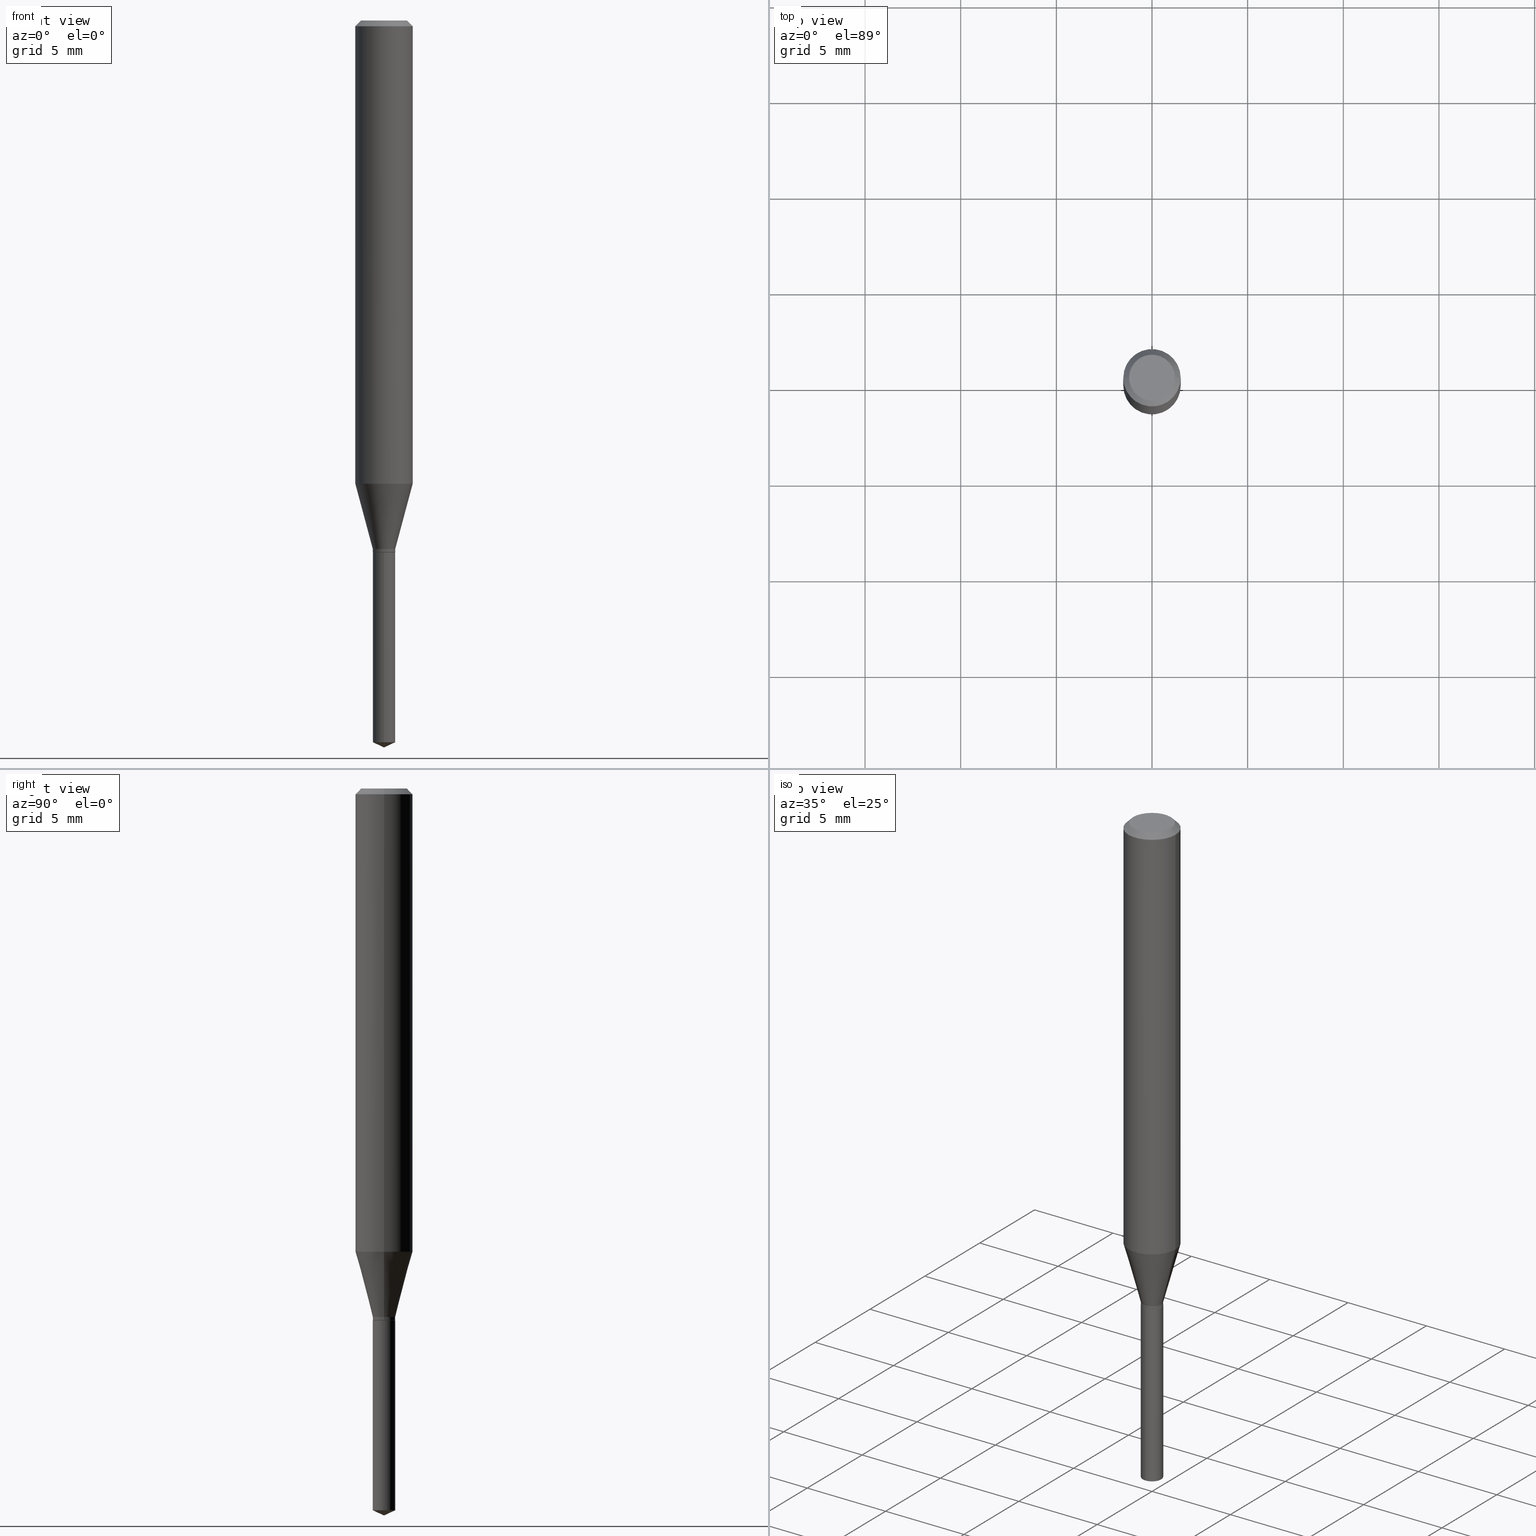
[diagram: canonical four-view strip — front | top / right | iso, engineering-drawing reading convention]
A machine part, canonical four-view strip (front | top / right | iso — engineering-drawing reading convention). The complete STEP part file that produces these views, byte-faithful:
ISO-10303-21;
HEADER;
FILE_DESCRIPTION (( 'STEP AP203' ),
    '1' );
FILE_NAME ('07845.STEP',
    '2024-04-24T04:21:15',
    ( '' ),
    ( '' ),
    'SwSTEP 2.0',
    'SolidWorks 2023',
    '' );
FILE_SCHEMA (( 'CONFIG_CONTROL_DESIGN' ));
ENDSEC;

DATA;
#1 = DIRECTION ( 'NONE',  ( -2.445470214571802116E-29, 3.491479321953280158E-15, 1.000000000000000000 ) ) ;
#2 = AXIS2_PLACEMENT_3D ( 'NONE', #76, #419, #384 ) ;
#3 = AXIS2_PLACEMENT_3D ( 'NONE', #281, #426, #246 ) ;
#4 = DIRECTION ( 'NONE',  ( 1.000000000000000000, -6.982962677686266711E-15, 0.000000000000000000 ) ) ;
#5 = CARTESIAN_POINT ( 'NONE',  ( 0.05905000000000006077, -4.123439461173744764E-16, 2.879382386107503023E-30 ) ) ;
#6 = EDGE_LOOP ( 'NONE', ( #293, #39 ) ) ;
#7 = VERTEX_POINT ( 'NONE', #413 ) ;
#8 = AXIS2_PLACEMENT_3D ( 'NONE', #186, #34, #78 ) ;
#9 = AXIS2_PLACEMENT_3D ( 'NONE', #316, #472, #238 ) ;
#10 = FACE_OUTER_BOUND ( 'NONE', #333, .T. ) ;
#11 = CARTESIAN_POINT ( 'NONE',  ( 3.632381575223795657E-29, -5.186076634322272110E-15, -1.485351608479527075 ) ) ;
#12 = VERTEX_POINT ( 'NONE', #174 ) ;
#13 = VECTOR ( 'NONE', #222, 39.37007874015748854 ) ;
#14 = VERTEX_POINT ( 'NONE', #221 ) ;
#15 = CONICAL_SURFACE ( 'NONE', #375, 0.02255000000000000060, 0.7853981633974098653 ) ;
#16 = EDGE_CURVE ( 'NONE', #449, #392, #72, .T. ) ;
#17 = COORDINATED_UNIVERSAL_TIME_OFFSET ( 5, 0, .BEHIND. ) ;
#18 = APPLICATION_CONTEXT ( 'configuration controlled 3d designs of mechanical parts and assemblies' ) ;
#19 = PERSON_AND_ORGANIZATION ( #175, #440 ) ;
#20 = VERTEX_POINT ( 'NONE', #340 ) ;
#21 = CIRCLE ( 'NONE', #141, 0.02305000000000000104 ) ;
#22 = CARTESIAN_POINT ( 'NONE',  ( -0.05904999999999999832, 3.711095515056362547E-16, -0.01181000000000007565 ) ) ;
#23 = PERSON_AND_ORGANIZATION_ROLE ( 'classification_officer' ) ;
#24 = DIRECTION ( 'NONE',  ( 0.000000000000000000, 0.000000000000000000, 1.000000000000000000 ) ) ;
#25 = DIRECTION ( 'NONE',  ( -2.445468806185136597E-29, 3.491481338843145583E-15, 1.000000000000000000 ) ) ;
#26 = CARTESIAN_POINT ( 'NONE',  ( -0.02305000000000000104, -3.633555003533102036E-15, -1.087599999999999900 ) ) ;
#27 = AXIS2_PLACEMENT_3D ( 'NONE', #187, #313, #181 ) ;
#28 = ORIENTED_EDGE ( 'NONE', *, *, #385, .F. ) ;
#29 = CYLINDRICAL_SURFACE ( 'NONE', #8, 0.02305000000000000104 ) ;
#30 = SECURITY_CLASSIFICATION ( '', '', #220 ) ;
#31 = ADVANCED_FACE ( 'NONE', ( #331 ), #257, .T. ) ;
#32 = DIRECTION ( 'NONE',  ( -2.445468806185136597E-29, 3.491481338843145583E-15, 1.000000000000000000 ) ) ;
#33 = CARTESIAN_POINT ( 'NONE',  ( 2.676565608369631794E-29, -3.821426325363822773E-15, -1.094499999999999806 ) ) ;
#34 = DIRECTION ( 'NONE',  ( -2.445468806185136597E-29, 3.491481338843145583E-15, 1.000000000000000000 ) ) ;
#35 = FACE_OUTER_BOUND ( 'NONE', #146, .T. ) ;
#36 = ADVANCED_FACE ( 'NONE', ( #365 ), #99, .T. ) ;
#37 = DIRECTION ( 'NONE',  ( -2.445468806185136877E-29, 3.491481338843145188E-15, 1.000000000000000000 ) ) ;
#38 = CARTESIAN_POINT ( 'NONE',  ( 2.676565608369631794E-29, -3.821426325363822773E-15, -1.094499999999999806 ) ) ;
#39 = ORIENTED_EDGE ( 'NONE', *, *, #16, .F. ) ;
#40 = CARTESIAN_POINT ( 'NONE',  ( 2.888098660104664642E-31, -4.123439461173780879E-17, -0.01181000000000007565 ) ) ;
#41 = ADVANCED_FACE ( 'NONE', ( #111 ), #467, .F. ) ;
#42 = EDGE_LOOP ( 'NONE', ( #377, #122, #451, #403 ) ) ;
#43 = VECTOR ( 'NONE', #203, 39.37007874015748143 ) ;
#44 =( GEOMETRIC_REPRESENTATION_CONTEXT ( 3 ) GLOBAL_UNCERTAINTY_ASSIGNED_CONTEXT ( ( #486 ) ) GLOBAL_UNIT_ASSIGNED_CONTEXT ( ( #393, #464, #89 ) ) REPRESENTATION_CONTEXT ( 'NONE', 'WORKASPACE' ) );
#45 = DIRECTION ( 'NONE',  ( -2.445468806185136877E-29, 3.491481338843145188E-15, 1.000000000000000000 ) ) ;
#46 = LENGTH_MEASURE_WITH_UNIT ( LENGTH_MEASURE( 0.02539999999999999897 ), #314 );
#47 = CARTESIAN_POINT ( 'NONE',  ( -0.02305000000000000104, -3.644727743817399659E-15, -1.087599999999999900 ) ) ;
#48 = CIRCLE ( 'NONE', #110, 0.05904999999999999832 ) ;
#49 = CARTESIAN_POINT ( 'NONE',  ( -9.261968845786000133E-28, 1.322362114038720264E-13, 37.87397874015748300 ) ) ;
#50 = DIRECTION ( 'NONE',  ( 0.2588190451025211836, 1.565188264969622559E-15, 0.9659258262890679791 ) ) ;
#51 = EDGE_CURVE ( 'NONE', #392, #411, #52, .T. ) ;
#52 = LINE ( 'NONE', #284, #321 ) ;
#53 = FACE_OUTER_BOUND ( 'NONE', #130, .T. ) ;
#54 = DIRECTION ( 'NONE',  ( 1.000000000000000000, -6.982962677686264344E-15, 0.000000000000000000 ) ) ;
#55 = ORIENTED_EDGE ( 'NONE', *, *, #162, .T. ) ;
#56 = MANIFOLD_SOLID_BREP ( 'Body-Move/Copy2[1]', #97 ) ;
#57 = EDGE_LOOP ( 'NONE', ( #381, #415, #205, #260 ) ) ;
#58 = ORIENTED_EDGE ( 'NONE', *, *, #444, .F. ) ;
#59 = DATE_AND_TIME ( #362, #226 ) ;
#60 = AXIS2_PLACEMENT_3D ( 'NONE', #414, #113, #378 ) ;
#61 = ORIENTED_EDGE ( 'NONE', *, *, #135, .T. ) ;
#62 = COORDINATED_UNIVERSAL_TIME_OFFSET ( 5, 0, .BEHIND. ) ;
#63 = CARTESIAN_POINT ( 'NONE',  ( 2.675342873966538993E-29, -3.819680584694400481E-15, -1.093999999999999861 ) ) ;
#64 = DIRECTION ( 'NONE',  ( -2.445468806185136597E-29, 3.491481338843145583E-15, 1.000000000000000000 ) ) ;
#65 = APPROVAL_STATUS ( 'not_yet_approved' ) ;
#66 = AXIS2_PLACEMENT_3D ( 'NONE', #118, #339, #4 ) ;
#67 = DIRECTION ( 'NONE',  ( -6.982962677686267499E-15, -1.000000000000000000, 0.000000000000000000 ) ) ;
#68 = PERSON_AND_ORGANIZATION ( #175, #440 ) ;
#69 = DIRECTION ( 'NONE',  ( -2.445468806185136597E-29, 3.491481338843145583E-15, 1.000000000000000000 ) ) ;
#70 = ADVANCED_FACE ( 'NONE', ( #412 ), #439, .T. ) ;
#71 = CARTESIAN_POINT ( 'NONE',  ( 8.265746106709734507E-48, -1.180129479067563789E-33, -3.380025165646692144E-19 ) ) ;
#72 = CIRCLE ( 'NONE', #217, 0.02255000000000000060 ) ;
#73 = ORIENTED_EDGE ( 'NONE', *, *, #51, .F. ) ;
#74 = CC_DESIGN_APPROVAL ( #183, ( #30 ) ) ;
#75 = ADVANCED_FACE ( 'NONE', ( #35 ), #29, .T. ) ;
#76 = CARTESIAN_POINT ( 'NONE',  ( 2.331133775618675358E-29, -3.328241217117120048E-15, -0.9532461709275201756 ) ) ;
#77 = FACE_OUTER_BOUND ( 'NONE', #435, .T. ) ;
#78 = DIRECTION ( 'NONE',  ( 1.000000000000000000, -6.982962677686267499E-15, 4.876176775795935793E-29 ) ) ;
#79 = APPROVAL ( #65, 'UNSPECIFIED' ) ;
#80 = LINE ( 'NONE', #307, #82 ) ;
#81 = DIRECTION ( 'NONE',  ( 0.7071067811865452413, -7.319954787623248157E-15, -0.7071067811865497932 ) ) ;
#82 = VECTOR ( 'NONE', #45, 39.37007874015748143 ) ;
#83 = CARTESIAN_POINT ( 'NONE',  ( 2.676565608369631794E-29, -3.821426325363822773E-15, -1.094499999999999806 ) ) ;
#84 = EDGE_CURVE ( 'NONE', #172, #159, #104, .T. ) ;
#85 = EDGE_LOOP ( 'NONE', ( #58, #319, #28 ) ) ;
#86 = CC_DESIGN_DATE_AND_TIME_ASSIGNMENT ( #176, #404, ( #30 ) ) ;
#87 = CONICAL_SURFACE ( 'NONE', #209, 0.05904999999999999832, 0.7853981633974450594 ) ;
#88 = LINE ( 'NONE', #22, #360 ) ;
#89 =( NAMED_UNIT ( * ) SI_UNIT ( $, .STERADIAN. ) SOLID_ANGLE_UNIT ( ) );
#90 = CC_DESIGN_PERSON_AND_ORGANIZATION_ASSIGNMENT ( #434, #23, ( #30 ) ) ;
#91 = ORIENTED_EDGE ( 'NONE', *, *, #189, .F. ) ;
#92 = DIRECTION ( 'NONE',  ( 1.000000000000000000, -6.982962677686261189E-15, 0.000000000000000000 ) ) ;
#93 = VERTEX_POINT ( 'NONE', #460 ) ;
#94 = APPROVAL_STATUS ( 'not_yet_approved' ) ;
#95 = ORIENTED_EDGE ( 'NONE', *, *, #264, .F. ) ;
#96 = APPROVAL_ROLE ( '' ) ;
#97 = CLOSED_SHELL ( 'NONE', ( #249, #207, #474, #255, #41 ) ) ;
#98 = VECTOR ( 'NONE', #272, 39.37007874015748854 ) ;
#99 = CYLINDRICAL_SURFACE ( 'NONE', #208, 0.02305000000000000104 ) ;
#100 = DIRECTION ( 'NONE',  ( 1.000000000000000000, -6.982962677686267499E-15, 4.876176775795935793E-29 ) ) ;
#101 = CARTESIAN_POINT ( 'NONE',  ( 3.632381575223795657E-29, -5.186076634322272110E-15, -1.485351608479527075 ) ) ;
#102 = EDGE_CURVE ( 'NONE', #480, #169, #457, .T. ) ;
#103 = DIRECTION ( 'NONE',  ( 1.000000000000000000, 0.000000000000000000, 0.000000000000000000 ) ) ;
#104 = CIRCLE ( 'NONE', #477, 0.02305000000000000104 ) ;
#105 = APPROVAL_PERSON_ORGANIZATION ( #68, #298, #481 ) ;
#106 = CC_DESIGN_PERSON_AND_ORGANIZATION_ASSIGNMENT ( #139, #447, ( #127 ) ) ;
#107 = DIRECTION ( 'NONE',  ( 1.000000000000000000, -6.982962677686266711E-15, 4.876185090822587894E-29 ) ) ;
#108 = ADVANCED_FACE ( 'NONE', ( #240 ), #328, .T. ) ;
#109 = CARTESIAN_POINT ( 'NONE',  ( -0.02305000000000000104, 1.637801005927031003E-16, -1.133814538303755879E-30 ) ) ;
#110 = AXIS2_PLACEMENT_3D ( 'NONE', #164, #194, #465 ) ;
#111 = FACE_OUTER_BOUND ( 'NONE', #283, .T. ) ;
#112 = ORIENTED_EDGE ( 'NONE', *, *, #444, .T. ) ;
#113 = DIRECTION ( 'NONE',  ( -2.445470214571802116E-29, 3.491479321953280158E-15, 1.000000000000000000 ) ) ;
#114 = ORIENTED_EDGE ( 'NONE', *, *, #144, .T. ) ;
#115 = CARTESIAN_POINT ( 'NONE',  ( -0.05904999999999999832, -1.265162320398088606E-15, -0.01181000000000007565 ) ) ;
#116 = CARTESIAN_POINT ( 'NONE',  ( 2.888098660104664642E-31, -4.123439461173780879E-17, -0.01181000000000007565 ) ) ;
#117 = ADVANCED_FACE ( 'NONE', ( #425 ), #166, .T. ) ;
#118 = CARTESIAN_POINT ( 'NONE',  ( 2.888098660104664642E-31, -4.123439461173780879E-17, -0.01181000000000007565 ) ) ;
#119 = AXIS2_PLACEMENT_3D ( 'NONE', #191, #458, #420 ) ;
#120 = DIRECTION ( 'NONE',  ( 6.439704144417020098E-15, 0.9063077870366507138, 0.4226182617406976649 ) ) ;
#121 = VECTOR ( 'NONE', #37, 39.37007874015748143 ) ;
#122 = ORIENTED_EDGE ( 'NONE', *, *, #336, .T. ) ;
#123 = FACE_OUTER_BOUND ( 'NONE', #476, .T. ) ;
#124 = ORIENTED_EDGE ( 'NONE', *, *, #237, .F. ) ;
#125 = DIRECTION ( 'NONE',  ( 2.445470214571801836E-29, -3.491479321953280158E-15, -1.000000000000000000 ) ) ;
#126 = AXIS2_PLACEMENT_3D ( 'NONE', #421, #231, #312 ) ;
#127 = PRODUCT_DEFINITION_FORMATION_WITH_SPECIFIED_SOURCE ( 'ANY', '', #489, .NOT_KNOWN. ) ;
#128 = ORIENTED_EDGE ( 'NONE', *, *, #102, .F. ) ;
#129 = CARTESIAN_POINT ( 'NONE',  ( 1.637801005927298229E-16, 0.02304999999999618118, -1.094500000000000028 ) ) ;
#130 = EDGE_LOOP ( 'NONE', ( #305, #442 ) ) ;
#131 = LINE ( 'NONE', #129, #361 ) ;
#132 = APPLICATION_CONTEXT ( 'configuration controlled 3d designs of mechanical parts and assemblies' ) ;
#133 = EDGE_LOOP ( 'NONE', ( #165, #114, #55, #124 ) ) ;
#134 = APPROVAL_DATE_TIME ( #59, #183 ) ;
#135 = EDGE_CURVE ( 'NONE', #12, #268, #48, .T. ) ;
#136 = LOCAL_TIME ( 0, 21, 15.00000000000000000, #62 ) ;
#137 = CC_DESIGN_APPROVAL ( #298, ( #127 ) ) ;
#138 = PRODUCT_RELATED_PRODUCT_CATEGORY ( 'detail', '', ( #489 ) ) ;
#139 = PERSON_AND_ORGANIZATION ( #175, #440 ) ;
#140 = CARTESIAN_POINT ( 'NONE',  ( 2.676565608369631794E-29, -3.821426325363822773E-15, -1.094499999999999806 ) ) ;
#141 = AXIS2_PLACEMENT_3D ( 'NONE', #101, #252, #67 ) ;
#142 = AXIS2_PLACEMENT_3D ( 'NONE', #11, #193, #469 ) ;
#143 = ORIENTED_EDGE ( 'NONE', *, *, #229, .T. ) ;
#144 = EDGE_CURVE ( 'NONE', #169, #348, #21, .T. ) ;
#145 = FACE_OUTER_BOUND ( 'NONE', #342, .T. ) ;
#146 = EDGE_LOOP ( 'NONE', ( #291, #152, #182, #483 ) ) ;
#147 = DIRECTION ( 'NONE',  ( 1.000000000000000000, -6.982962677686266711E-15, 4.876185090822587894E-29 ) ) ;
#148 = EDGE_CURVE ( 'NONE', #14, #358, #306, .T. ) ;
#149 = CARTESIAN_POINT ( 'NONE',  ( 2.676565608369631794E-29, -3.821426325363822773E-15, -1.094499999999999806 ) ) ;
#150 = AXIS2_PLACEMENT_3D ( 'NONE', #116, #273, #394 ) ;
#151 = AXIS2_PLACEMENT_3D ( 'NONE', #149, #192, #450 ) ;
#152 = ORIENTED_EDGE ( 'NONE', *, *, #344, .T. ) ;
#153 = FACE_OUTER_BOUND ( 'NONE', #85, .T. ) ;
#154 = EDGE_CURVE ( 'NONE', #280, #268, #88, .T. ) ;
#155 = LINE ( 'NONE', #452, #13 ) ;
#156 = EDGE_CURVE ( 'NONE', #20, #7, #454, .T. ) ;
#157 = CARTESIAN_POINT ( 'NONE',  ( -0.02304999999999999757, -3.644727743817399659E-15, -1.093999999999999861 ) ) ;
#158 = CIRCLE ( 'NONE', #66, 0.05904999999999999832 ) ;
#159 = VERTEX_POINT ( 'NONE', #345 ) ;
#160 = CIRCLE ( 'NONE', #142, 0.02305000000000000104 ) ;
#161 = FACE_OUTER_BOUND ( 'NONE', #400, .T. ) ;
#162 = EDGE_CURVE ( 'NONE', #348, #172, #211, .T. ) ;
#163 = DIRECTION ( 'NONE',  ( -2.438088387897960049E-29, 3.491481338843145188E-15, 1.000000000000000000 ) ) ;
#164 = CARTESIAN_POINT ( 'NONE',  ( 2.888098660104664642E-31, -4.123439461173780879E-17, -0.01181000000000007565 ) ) ;
#165 = ORIENTED_EDGE ( 'NONE', *, *, #366, .F. ) ;
#166 = CONICAL_SURFACE ( 'NONE', #150, 0.05904999999999999832, 0.7853981633974450594 ) ;
#167 = ORIENTED_EDGE ( 'NONE', *, *, #385, .T. ) ;
#168 = DIRECTION ( 'NONE',  ( -6.328713451373365434E-15, -0.9063077870366478273, 0.4226182617407039932 ) ) ;
#169 = VERTEX_POINT ( 'NONE', #332 ) ;
#170 = APPROVAL_DATE_TIME ( #407, #79 ) ;
#171 = EDGE_CURVE ( 'NONE', #20, #268, #276, .T. ) ;
#172 = VERTEX_POINT ( 'NONE', #270 ) ;
#173 = COORDINATED_UNIVERSAL_TIME_OFFSET ( 5, 0, .BEHIND. ) ;
#174 = CARTESIAN_POINT ( 'NONE',  ( 0.05904999999999999832, -4.535783407291118600E-16, -0.01181000000000007565 ) ) ;
#175 = PERSON ( 'UNSPECIFIED', 'UNSPECIFIED', 'UNSPECIFIED', ('UNSPECIFIED'), ('UNSPECIFIED'), ('UNSPECIFIED') ) ;
#176 = DATE_AND_TIME ( #368, #416 ) ;
#177 = CARTESIAN_POINT ( 'NONE',  ( 2.676565608369631794E-29, -3.821426325363822773E-15, -1.094499999999999806 ) ) ;
#178 = PRODUCT_DEFINITION ( 'UNKNOWN', '', #127, #446 ) ;
#179 = DATE_AND_TIME ( #253, #251 ) ;
#180 = AXIS2_PLACEMENT_3D ( 'NONE', #349, #263, #347 ) ;
#181 = DIRECTION ( 'NONE',  ( -6.982962677686267499E-15, -1.000000000000000000, 5.925917556755451686E-15 ) ) ;
#182 = ORIENTED_EDGE ( 'NONE', *, *, #317, .T. ) ;
#183 = APPROVAL ( #94, 'UNSPECIFIED' ) ;
#184 = DIRECTION ( 'NONE',  ( 1.000000000000000000, -6.982962677686261189E-15, 0.000000000000000000 ) ) ;
#185 = DIRECTION ( 'NONE',  ( -2.445470214571802116E-29, 3.491479321953280158E-15, 1.000000000000000000 ) ) ;
#186 = CARTESIAN_POINT ( 'NONE',  ( 0.000000000000000000, 0.000000000000000000, 0.000000000000000000 ) ) ;
#187 = CARTESIAN_POINT ( 'NONE',  ( 2.676565608369631794E-29, -3.821426325363822773E-15, -1.094499999999999806 ) ) ;
#188 = DIRECTION ( 'NONE',  ( -1.000000000000000000, 6.982962677686266711E-15, 0.000000000000000000 ) ) ;
#189 = EDGE_CURVE ( 'NONE', #411, #364, #242, .T. ) ;
#190 = VECTOR ( 'NONE', #50, 39.37007874015748854 ) ;
#191 = CARTESIAN_POINT ( 'NONE',  ( 2.659691873606954161E-29, -3.797335104125804446E-15, -1.087599999999999900 ) ) ;
#192 = DIRECTION ( 'NONE',  ( -2.445468806185136597E-29, 3.491481338843145583E-15, 1.000000000000000000 ) ) ;
#193 = DIRECTION ( 'NONE',  ( -2.445470214571802116E-29, 3.491479321953280158E-15, 1.000000000000000000 ) ) ;
#194 = DIRECTION ( 'NONE',  ( -2.445468806185136597E-29, 3.491481338843145583E-15, 1.000000000000000000 ) ) ;
#195 = ADVANCED_FACE ( 'NONE', ( #53 ), #379, .F. ) ;
#196 = CARTESIAN_POINT ( 'NONE',  ( 0.02304999999999999757, -3.980637874415069421E-15, -1.093999999999999861 ) ) ;
#197 = ORIENTED_EDGE ( 'NONE', *, *, #144, .F. ) ;
#198 = AXIS2_PLACEMENT_3D ( 'NONE', #326, #125, #473 ) ;
#199 = EDGE_CURVE ( 'NONE', #268, #12, #158, .T. ) ;
#200 = CARTESIAN_POINT ( 'NONE',  ( 2.676565608369631794E-29, -3.821426325363822773E-15, -1.094499999999999806 ) ) ;
#201 = CARTESIAN_POINT ( 'NONE',  ( 0.02305000000000000104, -3.958292393846472597E-15, -1.087599999999999900 ) ) ;
#202 = ORIENTED_EDGE ( 'NONE', *, *, #171, .T. ) ;
#203 = DIRECTION ( 'NONE',  ( -2.445468806185136877E-29, 3.491481338843145188E-15, 1.000000000000000000 ) ) ;
#204 = FACE_OUTER_BOUND ( 'NONE', #6, .T. ) ;
#205 = ORIENTED_EDGE ( 'NONE', *, *, #51, .T. ) ;
#206 = ORIENTED_EDGE ( 'NONE', *, *, #154, .F. ) ;
#207 = ADVANCED_FACE ( 'NONE', ( #153 ), #235, .T. ) ;
#208 = AXIS2_PLACEMENT_3D ( 'NONE', #406, #215, #100 ) ;
#209 = AXIS2_PLACEMENT_3D ( 'NONE', #40, #230, #188 ) ;
#210 = PERSON_AND_ORGANIZATION_ROLE ( 'creator' ) ;
#211 = LINE ( 'NONE', #338, #423 ) ;
#212 = ORIENTED_EDGE ( 'NONE', *, *, #237, .T. ) ;
#213 = ORIENTED_EDGE ( 'NONE', *, *, #84, .T. ) ;
#214 = PERSON_AND_ORGANIZATION_ROLE ( 'design_owner' ) ;
#215 = DIRECTION ( 'NONE',  ( -2.445468806185136597E-29, 3.491481338843145583E-15, 1.000000000000000000 ) ) ;
#216 = DIRECTION ( 'NONE',  ( 1.000000000000000000, -6.982962677686266711E-15, 4.876176775795935793E-29 ) ) ;
#217 = AXIS2_PLACEMENT_3D ( 'NONE', #177, #32, #184 ) ;
#218 = MECHANICAL_CONTEXT ( 'NONE', #132, 'mechanical' ) ;
#219 = CARTESIAN_POINT ( 'NONE',  ( 0.000000000000000000, 0.000000000000000000, 0.000000000000000000 ) ) ;
#220 = SECURITY_CLASSIFICATION_LEVEL ( 'unclassified' ) ;
#221 = CARTESIAN_POINT ( 'NONE',  ( 0.02305000000000000104, -3.958292393846472597E-15, -1.087599999999999900 ) ) ;
#222 = DIRECTION ( 'NONE',  ( -0.7071067811865202613, 7.493145998870254764E-15, 0.7071067811865746622 ) ) ;
#223 = EDGE_CURVE ( 'NONE', #93, #12, #459, .T. ) ;
#224 = AXIS2_PLACEMENT_3D ( 'NONE', #219, #250, #216 ) ;
#225 = DIRECTION ( 'NONE',  ( -2.445468806185136597E-29, 3.491481338843145583E-15, 1.000000000000000000 ) ) ;
#226 = LOCAL_TIME ( 0, 21, 15.00000000000000000, #372 ) ;
#227 = ORIENTED_EDGE ( 'NONE', *, *, #199, .T. ) ;
#228 = DIRECTION ( 'NONE',  ( 1.000000000000000000, -6.982962677686261189E-15, 0.000000000000000000 ) ) ;
#229 = EDGE_CURVE ( 'NONE', #7, #20, #408, .T. ) ;
#230 = DIRECTION ( 'NONE',  ( 2.445468806185136597E-29, -3.491481338843145583E-15, -1.000000000000000000 ) ) ;
#231 = DIRECTION ( 'NONE',  ( -2.445470214571802116E-29, 3.491479321953280158E-15, 1.000000000000000000 ) ) ;
#232 = ORIENTED_EDGE ( 'NONE', *, *, #162, .F. ) ;
#233 = ORIENTED_EDGE ( 'NONE', *, *, #84, .F. ) ;
#234 = DIRECTION ( 'NONE',  ( 1.000000000000000000, -6.982962677686262766E-15, 0.000000000000000000 ) ) ;
#235 = CONICAL_SURFACE ( 'NONE', #126, 84.42940631927361039, 1.134464013796312676 ) ;
#236 = FACE_OUTER_BOUND ( 'NONE', #399, .T. ) ;
#237 = EDGE_CURVE ( 'NONE', #159, #172, #258, .T. ) ;
#238 = DIRECTION ( 'NONE',  ( 1.000000000000000000, -6.982962677686262766E-15, 0.000000000000000000 ) ) ;
#239 = ORIENTED_EDGE ( 'NONE', *, *, #156, .T. ) ;
#240 = FACE_OUTER_BOUND ( 'NONE', #363, .T. ) ;
#241 = APPLICATION_PROTOCOL_DEFINITION ( 'international standard', 'config_control_design', 1994, #132 ) ;
#242 = CIRCLE ( 'NONE', #482, 0.02304999999999999757 ) ;
#243 = AXIS2_PLACEMENT_3D ( 'NONE', #462, #343, #107 ) ;
#244 = CYLINDRICAL_SURFACE ( 'NONE', #3, 0.05905000000000006077 ) ;
#245 = ORIENTED_EDGE ( 'NONE', *, *, #286, .F. ) ;
#246 = DIRECTION ( 'NONE',  ( 1.000000000000000000, -6.982962677686266711E-15, 4.876176775795935793E-29 ) ) ;
#247 = EDGE_CURVE ( 'NONE', #449, #364, #155, .T. ) ;
#248 = PERSON_AND_ORGANIZATION ( #175, #440 ) ;
#249 = ADVANCED_FACE ( 'NONE', ( #145 ), #417, .T. ) ;
#250 = DIRECTION ( 'NONE',  ( -2.445468806185136597E-29, 3.491481338843145583E-15, 1.000000000000000000 ) ) ;
#251 = LOCAL_TIME ( 0, 21, 15.00000000000000000, #173 ) ;
#252 = DIRECTION ( 'NONE',  ( -2.445470214571802116E-29, 3.491479321953280158E-15, 1.000000000000000000 ) ) ;
#253 = CALENDAR_DATE ( 2024, 24, 4 ) ;
#254 = DIRECTION ( 'NONE',  ( 1.000000000000000000, -6.982962677686262766E-15, 0.000000000000000000 ) ) ;
#255 = ADVANCED_FACE ( 'NONE', ( #456 ), #274, .T. ) ;
#256 = APPROVAL_ROLE ( '' ) ;
#257 = CYLINDRICAL_SURFACE ( 'NONE', #224, 0.05905000000000006077 ) ;
#258 = CIRCLE ( 'NONE', #448, 0.02305000000000000104 ) ;
#259 = AXIS2_PLACEMENT_3D ( 'NONE', #71, #225, #147 ) ;
#260 = ORIENTED_EDGE ( 'NONE', *, *, #344, .F. ) ;
#261 = ORIENTED_EDGE ( 'NONE', *, *, #229, .F. ) ;
#262 = CARTESIAN_POINT ( 'NONE',  ( -0.05905000000000006077, 4.195754854663395916E-16, -2.904631170795524694E-30 ) ) ;
#263 = DIRECTION ( 'NONE',  ( 2.438088387897960049E-29, -3.491481338843145188E-15, -1.000000000000000000 ) ) ;
#264 = EDGE_CURVE ( 'NONE', #93, #280, #471, .T. ) ;
#265 = PRODUCT_DEFINITION_SHAPE ( 'NONE', 'NONE',  #178 ) ;
#266 = VECTOR ( 'NONE', #120, 39.37007874015748854 ) ;
#267 = DIRECTION ( 'NONE',  ( -2.445468806185136877E-29, 3.491481338843145188E-15, 1.000000000000000000 ) ) ;
#268 = VERTEX_POINT ( 'NONE', #115 ) ;
#269 = CARTESIAN_POINT ( 'NONE',  ( 2.675342873966538993E-29, -3.819680584694400481E-15, -1.093999999999999861 ) ) ;
#270 = CARTESIAN_POINT ( 'NONE',  ( -1.609572897206416996E-16, -0.02305000000000382437, -1.094499999999999806 ) ) ;
#271 = CC_DESIGN_PERSON_AND_ORGANIZATION_ASSIGNMENT ( #327, #210, ( #178 ) ) ;
#272 = DIRECTION ( 'NONE',  ( -0.2588190451025211836, 5.211531920934547886E-15, 0.9659258262890679791 ) ) ;
#273 = DIRECTION ( 'NONE',  ( 2.445468806185136597E-29, -3.491481338843145583E-15, -1.000000000000000000 ) ) ;
#274 = CYLINDRICAL_SURFACE ( 'NONE', #60, 0.02305000000000000104 ) ;
#275 = CIRCLE ( 'NONE', #243, 0.04724000000000000421 ) ;
#276 = LINE ( 'NONE', #262, #43 ) ;
#277 = ORIENTED_EDGE ( 'NONE', *, *, #247, .T. ) ;
#278 = VECTOR ( 'NONE', #168, 39.37007874015748854 ) ;
#279 = DIRECTION ( 'NONE',  ( 0.7071067811865202613, -2.468850131081971887E-15, 0.7071067811865746622 ) ) ;
#280 = VERTEX_POINT ( 'NONE', #373 ) ;
#281 = CARTESIAN_POINT ( 'NONE',  ( 0.000000000000000000, 0.000000000000000000, 0.000000000000000000 ) ) ;
#282 = APPROVAL_STATUS ( 'not_yet_approved' ) ;
#283 = EDGE_LOOP ( 'NONE', ( #213, #212 ) ) ;
#284 = CARTESIAN_POINT ( 'NONE',  ( 0.02255000000000000060, -3.978892133745647917E-15, -1.094499999999999806 ) ) ;
#285 = ORIENTED_EDGE ( 'NONE', *, *, #223, .T. ) ;
#286 = EDGE_CURVE ( 'NONE', #358, #20, #490, .T. ) ;
#287 = CARTESIAN_POINT ( 'NONE',  ( 2.659691873606954161E-29, -3.797335104125804446E-15, -1.087599999999999900 ) ) ;
#288 = CLOSED_SHELL ( 'NONE', ( #357, #295, #478, #108, #36, #75, #466, #31, #117, #195, #427, #70 ) ) ;
#289 = CONICAL_SURFACE ( 'NONE', #463, 84.42940631927361039, 1.134464013796312676 ) ;
#290 = CARTESIAN_POINT ( 'NONE',  ( 0.000000000000000000, 0.000000000000000000, 0.000000000000000000 ) ) ;
#291 = ORIENTED_EDGE ( 'NONE', *, *, #336, .F. ) ;
#292 = APPROVAL_DATE_TIME ( #436, #298 ) ;
#293 = ORIENTED_EDGE ( 'NONE', *, *, #310, .F. ) ;
#294 = PERSON_AND_ORGANIZATION ( #175, #440 ) ;
#295 = ADVANCED_FACE ( 'NONE', ( #77 ), #87, .T. ) ;
#296 = AXIS2_PLACEMENT_3D ( 'NONE', #269, #324, #388 ) ;
#297 = ORIENTED_EDGE ( 'NONE', *, *, #156, .F. ) ;
#298 = APPROVAL ( #282, 'UNSPECIFIED' ) ;
#299 = LINE ( 'NONE', #5, #121 ) ;
#300 = DIMENSIONAL_EXPONENTS ( 1.000000000000000000, 0.000000000000000000, 0.000000000000000000, 0.000000000000000000, 0.000000000000000000, 0.000000000000000000, 0.000000000000000000 ) ;
#301 = EDGE_LOOP ( 'NONE', ( #398, #239, #367, #453 ) ) ;
#302 = LINE ( 'NONE', #109, #409 ) ;
#303 = EDGE_CURVE ( 'NONE', #7, #12, #299, .T. ) ;
#304 = ADVANCED_BREP_SHAPE_REPRESENTATION ( '07845', ( #56, #396, #346 ), #44 ) ;
#305 = ORIENTED_EDGE ( 'NONE', *, *, #323, .T. ) ;
#306 = CIRCLE ( 'NONE', #390, 0.02305000000000000104 ) ;
#307 = CARTESIAN_POINT ( 'NONE',  ( 0.02305000000000000104, -1.609572897206684715E-16, 1.123958746820963307E-30 ) ) ;
#308 = DIRECTION ( 'NONE',  ( -6.982962677686267499E-15, -1.000000000000000000, 5.925917556755451686E-15 ) ) ;
#309 = ORIENTED_EDGE ( 'NONE', *, *, #303, .F. ) ;
#310 = EDGE_CURVE ( 'NONE', #392, #449, #370, .T. ) ;
#311 = CARTESIAN_POINT ( 'NONE',  ( 3.658668015054778287E-29, -5.223602213574301462E-15, -1.496099999999999985 ) ) ;
#312 = DIRECTION ( 'NONE',  ( -6.982962677686268288E-15, -1.000000000000000000, 3.520397390770484241E-15 ) ) ;
#313 = DIRECTION ( 'NONE',  ( -2.445470214571802116E-29, 3.491479321953280158E-15, 1.000000000000000000 ) ) ;
#314 =( LENGTH_UNIT ( ) NAMED_UNIT ( * ) SI_UNIT ( $, .METRE. ) );
#315 = CIRCLE ( 'NONE', #402, 0.02305000000000000104 ) ;
#316 = CARTESIAN_POINT ( 'NONE',  ( 2.659691873606954161E-29, -3.797335104125804446E-15, -1.087599999999999900 ) ) ;
#317 = EDGE_CURVE ( 'NONE', #411, #14, #80, .T. ) ;
#318 = LINE ( 'NONE', #356, #278 ) ;
#319 = ORIENTED_EDGE ( 'NONE', *, *, #102, .T. ) ;
#320 = CARTESIAN_POINT ( 'NONE',  ( -1.609572897206320607E-16, -0.02305000000000518440, -1.485351608479527075 ) ) ;
#321 = VECTOR ( 'NONE', #279, 39.37007874015748854 ) ;
#322 = LOCAL_TIME ( 0, 21, 15.00000000000000000, #17 ) ;
#323 = EDGE_CURVE ( 'NONE', #280, #93, #275, .T. ) ;
#324 = DIRECTION ( 'NONE',  ( -2.445468806185136597E-29, 3.491481338843145583E-15, 1.000000000000000000 ) ) ;
#325 = ORIENTED_EDGE ( 'NONE', *, *, #323, .F. ) ;
#326 = CARTESIAN_POINT ( 'NONE',  ( 2.676565608369631794E-29, -3.821426325363822773E-15, -1.094499999999999806 ) ) ;
#327 = PERSON_AND_ORGANIZATION ( #175, #440 ) ;
#328 = CONICAL_SURFACE ( 'NONE', #119, 0.02305000000000000104, 0.2617993877991499074 ) ;
#329 = APPROVAL_PERSON_ORGANIZATION ( #397, #183, #96 ) ;
#330 = APPLICATION_PROTOCOL_DEFINITION ( 'international standard', 'config_control_design', 1994, #18 ) ;
#331 = FACE_OUTER_BOUND ( 'NONE', #301, .T. ) ;
#332 = CARTESIAN_POINT ( 'NONE',  ( 1.637801005927393879E-16, 0.02304999999999480728, -1.485351608479527075 ) ) ;
#333 = EDGE_LOOP ( 'NONE', ( #143, #202, #355, #309 ) ) ;
#334 = EDGE_CURVE ( 'NONE', #358, #14, #315, .T. ) ;
#335 = PERSON_AND_ORGANIZATION_ROLE ( 'creator' ) ;
#336 = EDGE_CURVE ( 'NONE', #364, #358, #302, .T. ) ;
#337 = VECTOR ( 'NONE', #81, 39.37007874015748143 ) ;
#338 = CARTESIAN_POINT ( 'NONE',  ( -1.609572897206416996E-16, -0.02305000000000382437, -1.094499999999999806 ) ) ;
#339 = DIRECTION ( 'NONE',  ( -2.445468806185136597E-29, 3.491481338843145583E-15, 1.000000000000000000 ) ) ;
#340 = CARTESIAN_POINT ( 'NONE',  ( -0.05905000000000011628, -2.908665731650779766E-15, -0.9532461709275201756 ) ) ;
#341 = CARTESIAN_POINT ( 'NONE',  ( 2.659691873606954161E-29, -3.797335104125804446E-15, -1.087599999999999900 ) ) ;
#342 = EDGE_LOOP ( 'NONE', ( #167, #389, #233, #232 ) ) ;
#343 = DIRECTION ( 'NONE',  ( -2.445468806185136597E-29, 3.491481338843145583E-15, 1.000000000000000000 ) ) ;
#344 = EDGE_CURVE ( 'NONE', #364, #411, #382, .T. ) ;
#345 = CARTESIAN_POINT ( 'NONE',  ( 1.637801005927394372E-16, 0.02304999999999617771, -1.094500000000000028 ) ) ;
#346 = AXIS2_PLACEMENT_3D ( 'NONE', #290, #24, #103 ) ;
#347 = DIRECTION ( 'NONE',  ( -1.000000000000000000, 6.982962677686265922E-15, -4.876176775795935793E-29 ) ) ;
#348 = VERTEX_POINT ( 'NONE', #320 ) ;
#349 = CARTESIAN_POINT ( 'NONE',  ( 4.132873053354867254E-48, -5.900647395337818946E-34, -1.690012582823346072E-19 ) ) ;
#350 = DIRECTION ( 'NONE',  ( -2.445470214571802116E-29, 3.491479321953280158E-15, 1.000000000000000000 ) ) ;
#351 = LINE ( 'NONE', #201, #190 ) ;
#352 = EDGE_LOOP ( 'NONE', ( #429, #325, #437, #227 ) ) ;
#353 = CC_DESIGN_SECURITY_CLASSIFICATION ( #30, ( #127 ) ) ;
#354 = DIRECTION ( 'NONE',  ( -6.982962677686268288E-15, -1.000000000000000000, 3.520397390770484241E-15 ) ) ;
#355 = ORIENTED_EDGE ( 'NONE', *, *, #135, .F. ) ;
#356 = CARTESIAN_POINT ( 'NONE',  ( 3.658664905062460986E-29, -5.223606628546217219E-15, -1.496099999999999985 ) ) ;
#357 = ADVANCED_FACE ( 'NONE', ( #123 ), #15, .T. ) ;
#358 = VERTEX_POINT ( 'NONE', #47 ) ;
#359 = PLANE ( 'NONE',  #455 ) ;
#360 = VECTOR ( 'NONE', #374, 39.37007874015748143 ) ;
#361 = VECTOR ( 'NONE', #432, 39.37007874015748143 ) ;
#362 = CALENDAR_DATE ( 2024, 24, 4 ) ;
#363 = EDGE_LOOP ( 'NONE', ( #488, #405, #261, #443 ) ) ;
#364 = VERTEX_POINT ( 'NONE', #157 ) ;
#365 = FACE_OUTER_BOUND ( 'NONE', #42, .T. ) ;
#366 = EDGE_CURVE ( 'NONE', #169, #159, #131, .T. ) ;
#367 = ORIENTED_EDGE ( 'NONE', *, *, #303, .T. ) ;
#368 = CALENDAR_DATE ( 2024, 24, 4 ) ;
#369 = CALENDAR_DATE ( 2024, 24, 4 ) ;
#370 = CIRCLE ( 'NONE', #151, 0.02255000000000000060 ) ;
#371 = DATE_TIME_ROLE ( 'creation_date' ) ;
#372 = COORDINATED_UNIVERSAL_TIME_OFFSET ( 5, 0, .BEHIND. ) ;
#373 = CARTESIAN_POINT ( 'NONE',  ( -0.04724000000000000421, 3.504923541997677355E-16, -3.380025165670481712E-19 ) ) ;
#374 = DIRECTION ( 'NONE',  ( -0.7071067811865452413, 2.468850131082233000E-15, -0.7071067811865497932 ) ) ;
#375 = AXIS2_PLACEMENT_3D ( 'NONE', #200, #386, #92 ) ;
#376 = CARTESIAN_POINT ( 'NONE',  ( 2.331133775618675358E-29, -3.328241217117120048E-15, -0.9532461709275201756 ) ) ;
#377 = ORIENTED_EDGE ( 'NONE', *, *, #189, .T. ) ;
#378 = DIRECTION ( 'NONE',  ( -6.982962677686267499E-15, -1.000000000000000000, 5.925917556755451686E-15 ) ) ;
#379 = PLANE ( 'NONE',  #180 ) ;
#380 = ORIENTED_EDGE ( 'NONE', *, *, #334, .T. ) ;
#381 = ORIENTED_EDGE ( 'NONE', *, *, #247, .F. ) ;
#382 = CIRCLE ( 'NONE', #296, 0.02304999999999999757 ) ;
#383 = DIRECTION ( 'NONE',  ( 1.000000000000000000, -6.982962677686266711E-15, 0.000000000000000000 ) ) ;
#384 = DIRECTION ( 'NONE',  ( 1.000000000000000000, -6.982962677686266711E-15, 0.000000000000000000 ) ) ;
#385 = EDGE_CURVE ( 'NONE', #348, #169, #160, .T. ) ;
#386 = DIRECTION ( 'NONE',  ( -2.445468806185136597E-29, 3.491481338843145583E-15, 1.000000000000000000 ) ) ;
#387 = CC_DESIGN_DATE_AND_TIME_ASSIGNMENT ( #179, #371, ( #178 ) ) ;
#388 = DIRECTION ( 'NONE',  ( 1.000000000000000000, -6.982962677686264344E-15, 0.000000000000000000 ) ) ;
#389 = ORIENTED_EDGE ( 'NONE', *, *, #366, .T. ) ;
#390 = AXIS2_PLACEMENT_3D ( 'NONE', #287, #64, #254 ) ;
#391 = CC_DESIGN_PERSON_AND_ORGANIZATION_ASSIGNMENT ( #294, #335, ( #127 ) ) ;
#392 = VERTEX_POINT ( 'NONE', #424 ) ;
#393 =( CONVERSION_BASED_UNIT ( 'INCH', #46 ) LENGTH_UNIT ( ) NAMED_UNIT ( #300 ) );
#394 = DIRECTION ( 'NONE',  ( -1.000000000000000000, 6.982962677686266711E-15, 0.000000000000000000 ) ) ;
#395 = DIRECTION ( 'NONE',  ( 1.000000000000000000, -6.982962677686265922E-15, 4.876176775795935793E-29 ) ) ;
#396 = MANIFOLD_SOLID_BREP ( 'Body-Move/Copy2[2]', #288 ) ;
#397 = PERSON_AND_ORGANIZATION ( #175, #440 ) ;
#398 = ORIENTED_EDGE ( 'NONE', *, *, #171, .F. ) ;
#399 = EDGE_LOOP ( 'NONE', ( #128, #112, #197 ) ) ;
#400 = EDGE_LOOP ( 'NONE', ( #245, #380, #431, #297 ) ) ;
#401 = AXIS2_PLACEMENT_3D ( 'NONE', #376, #69, #383 ) ;
#402 = AXIS2_PLACEMENT_3D ( 'NONE', #341, #487, #234 ) ;
#403 = ORIENTED_EDGE ( 'NONE', *, *, #317, .F. ) ;
#404 = DATE_TIME_ROLE ( 'classification_date' ) ;
#405 = ORIENTED_EDGE ( 'NONE', *, *, #286, .T. ) ;
#406 = CARTESIAN_POINT ( 'NONE',  ( 0.000000000000000000, 0.000000000000000000, 0.000000000000000000 ) ) ;
#407 = DATE_AND_TIME ( #441, #322 ) ;
#408 = CIRCLE ( 'NONE', #401, 0.05905000000000011628 ) ;
#409 = VECTOR ( 'NONE', #267, 39.37007874015748143 ) ;
#410 = SHAPE_DEFINITION_REPRESENTATION ( #265, #304 ) ;
#411 = VERTEX_POINT ( 'NONE', #196 ) ;
#412 = FACE_OUTER_BOUND ( 'NONE', #57, .T. ) ;
#413 = CARTESIAN_POINT ( 'NONE',  ( 0.05905000000000011628, -3.740585163234494179E-15, -0.9532461709275201756 ) ) ;
#414 = CARTESIAN_POINT ( 'NONE',  ( 2.676565608369631794E-29, -3.821426325363822773E-15, -1.094499999999999806 ) ) ;
#415 = ORIENTED_EDGE ( 'NONE', *, *, #16, .T. ) ;
#416 = LOCAL_TIME ( 0, 21, 15.00000000000000000, #475 ) ;
#417 = CYLINDRICAL_SURFACE ( 'NONE', #27, 0.02305000000000000104 ) ;
#418 = CARTESIAN_POINT ( 'NONE',  ( 0.05904999999999999832, -4.463468013801466955E-16, -0.01181000000000007565 ) ) ;
#419 = DIRECTION ( 'NONE',  ( -2.445468806185136597E-29, 3.491481338843145583E-15, 1.000000000000000000 ) ) ;
#420 = DIRECTION ( 'NONE',  ( 1.000000000000000000, -6.982962677686262766E-15, 0.000000000000000000 ) ) ;
#421 = CARTESIAN_POINT ( 'NONE',  ( -9.261968845786000133E-28, 1.322362114038720264E-13, 37.87397874015748300 ) ) ;
#422 = DIRECTION ( 'NONE',  ( -2.445470214571802396E-29, 3.491479321953280158E-15, 1.000000000000000000 ) ) ;
#423 = VECTOR ( 'NONE', #422, 39.37007874015748143 ) ;
#424 = CARTESIAN_POINT ( 'NONE',  ( 0.02255000000000000060, -3.978892133745647917E-15, -1.094499999999999806 ) ) ;
#425 = FACE_OUTER_BOUND ( 'NONE', #352, .T. ) ;
#426 = DIRECTION ( 'NONE',  ( -2.445468806185136597E-29, 3.491481338843145583E-15, 1.000000000000000000 ) ) ;
#427 = ADVANCED_FACE ( 'NONE', ( #204 ), #359, .F. ) ;
#428 = CARTESIAN_POINT ( 'NONE',  ( 3.658667988020872822E-29, -5.223602213574301462E-15, -1.496099999999999985 ) ) ;
#429 = ORIENTED_EDGE ( 'NONE', *, *, #223, .F. ) ;
#430 = CONICAL_SURFACE ( 'NONE', #9, 0.02305000000000000104, 0.2617993877991499074 ) ;
#431 = ORIENTED_EDGE ( 'NONE', *, *, #461, .T. ) ;
#432 = DIRECTION ( 'NONE',  ( -2.445470214571802396E-29, 3.491479321953280158E-15, 1.000000000000000000 ) ) ;
#433 = ORIENTED_EDGE ( 'NONE', *, *, #310, .T. ) ;
#434 = PERSON_AND_ORGANIZATION ( #175, #440 ) ;
#435 = EDGE_LOOP ( 'NONE', ( #95, #285, #61, #206 ) ) ;
#436 = DATE_AND_TIME ( #369, #136 ) ;
#437 = ORIENTED_EDGE ( 'NONE', *, *, #154, .T. ) ;
#438 = CC_DESIGN_PERSON_AND_ORGANIZATION_ASSIGNMENT ( #248, #214, ( #489 ) ) ;
#439 = CONICAL_SURFACE ( 'NONE', #470, 0.02255000000000000060, 0.7853981633974098653 ) ;
#440 = ORGANIZATION ( 'UNSPECIFIED', 'UNSPECIFIED', '' ) ;
#441 = CALENDAR_DATE ( 2024, 24, 4 ) ;
#442 = ORIENTED_EDGE ( 'NONE', *, *, #264, .T. ) ;
#443 = ORIENTED_EDGE ( 'NONE', *, *, #461, .F. ) ;
#444 = EDGE_CURVE ( 'NONE', #480, #348, #318, .T. ) ;
#445 = DIRECTION ( 'NONE',  ( -2.445468806185136597E-29, 3.491481338843145583E-15, 1.000000000000000000 ) ) ;
#446 = DESIGN_CONTEXT ( 'detailed design', #18, 'design' ) ;
#447 = PERSON_AND_ORGANIZATION_ROLE ( 'design_supplier' ) ;
#448 = AXIS2_PLACEMENT_3D ( 'NONE', #33, #185, #485 ) ;
#449 = VERTEX_POINT ( 'NONE', #468 ) ;
#450 = DIRECTION ( 'NONE',  ( 1.000000000000000000, -6.982962677686261189E-15, 0.000000000000000000 ) ) ;
#451 = ORIENTED_EDGE ( 'NONE', *, *, #148, .F. ) ;
#452 = CARTESIAN_POINT ( 'NONE',  ( -0.02255000000000000060, -3.661198938449919684E-15, -1.094499999999999806 ) ) ;
#453 = ORIENTED_EDGE ( 'NONE', *, *, #199, .F. ) ;
#454 = CIRCLE ( 'NONE', #2, 0.05905000000000011628 ) ;
#455 = AXIS2_PLACEMENT_3D ( 'NONE', #83, #163, #395 ) ;
#456 = FACE_OUTER_BOUND ( 'NONE', #133, .T. ) ;
#457 = LINE ( 'NONE', #311, #266 ) ;
#458 = DIRECTION ( 'NONE',  ( -2.445468806185136597E-29, 3.491481338843145583E-15, 1.000000000000000000 ) ) ;
#459 = LINE ( 'NONE', #418, #337 ) ;
#460 = CARTESIAN_POINT ( 'NONE',  ( 0.04724000000000000421, -3.852183633974369345E-16, -3.380025165621689721E-19 ) ) ;
#461 = EDGE_CURVE ( 'NONE', #14, #7, #351, .T. ) ;
#462 = CARTESIAN_POINT ( 'NONE',  ( 8.265746106709734507E-48, -1.180129479067563789E-33, -3.380025165646692144E-19 ) ) ;
#463 = AXIS2_PLACEMENT_3D ( 'NONE', #49, #350, #354 ) ;
#464 =( NAMED_UNIT ( * ) PLANE_ANGLE_UNIT ( ) SI_UNIT ( $, .RADIAN. ) );
#465 = DIRECTION ( 'NONE',  ( 1.000000000000000000, -6.982962677686266711E-15, 0.000000000000000000 ) ) ;
#466 = ADVANCED_FACE ( 'NONE', ( #161 ), #430, .T. ) ;
#467 = PLANE ( 'NONE',  #198 ) ;
#468 = CARTESIAN_POINT ( 'NONE',  ( -0.02255000000000000060, -3.658549711275808483E-15, -1.094499999999999806 ) ) ;
#469 = DIRECTION ( 'NONE',  ( -6.982962677686267499E-15, -1.000000000000000000, 0.000000000000000000 ) ) ;
#470 = AXIS2_PLACEMENT_3D ( 'NONE', #140, #25, #228 ) ;
#471 = CIRCLE ( 'NONE', #259, 0.04724000000000000421 ) ;
#472 = DIRECTION ( 'NONE',  ( -2.445468806185136597E-29, 3.491481338843145583E-15, 1.000000000000000000 ) ) ;
#473 = DIRECTION ( 'NONE',  ( 6.982962677686265922E-15, 1.000000000000000000, -3.491479321953280158E-15 ) ) ;
#474 = ADVANCED_FACE ( 'NONE', ( #236 ), #289, .T. ) ;
#475 = COORDINATED_UNIVERSAL_TIME_OFFSET ( 5, 0, .BEHIND. ) ;
#476 = EDGE_LOOP ( 'NONE', ( #433, #277, #91, #73 ) ) ;
#477 = AXIS2_PLACEMENT_3D ( 'NONE', #38, #1, #308 ) ;
#478 = ADVANCED_FACE ( 'NONE', ( #10 ), #244, .T. ) ;
#479 = CC_DESIGN_APPROVAL ( #79, ( #178 ) ) ;
#480 = VERTEX_POINT ( 'NONE', #428 ) ;
#481 = APPROVAL_ROLE ( '' ) ;
#482 = AXIS2_PLACEMENT_3D ( 'NONE', #63, #445, #54 ) ;
#483 = ORIENTED_EDGE ( 'NONE', *, *, #334, .F. ) ;
#484 = APPROVAL_PERSON_ORGANIZATION ( #19, #79, #256 ) ;
#485 = DIRECTION ( 'NONE',  ( -6.982962677686267499E-15, -1.000000000000000000, 5.925917556755451686E-15 ) ) ;
#486 = UNCERTAINTY_MEASURE_WITH_UNIT (LENGTH_MEASURE( 1.000000000000000082E-05 ), #393, 'distance_accuracy_value', 'NONE');
#487 = DIRECTION ( 'NONE',  ( -2.445468806185136597E-29, 3.491481338843145583E-15, 1.000000000000000000 ) ) ;
#488 = ORIENTED_EDGE ( 'NONE', *, *, #148, .T. ) ;
#489 = PRODUCT ( '07845', '07845', '', ( #218 ) ) ;
#490 = LINE ( 'NONE', #26, #98 ) ;
ENDSEC;
END-ISO-10303-21;
